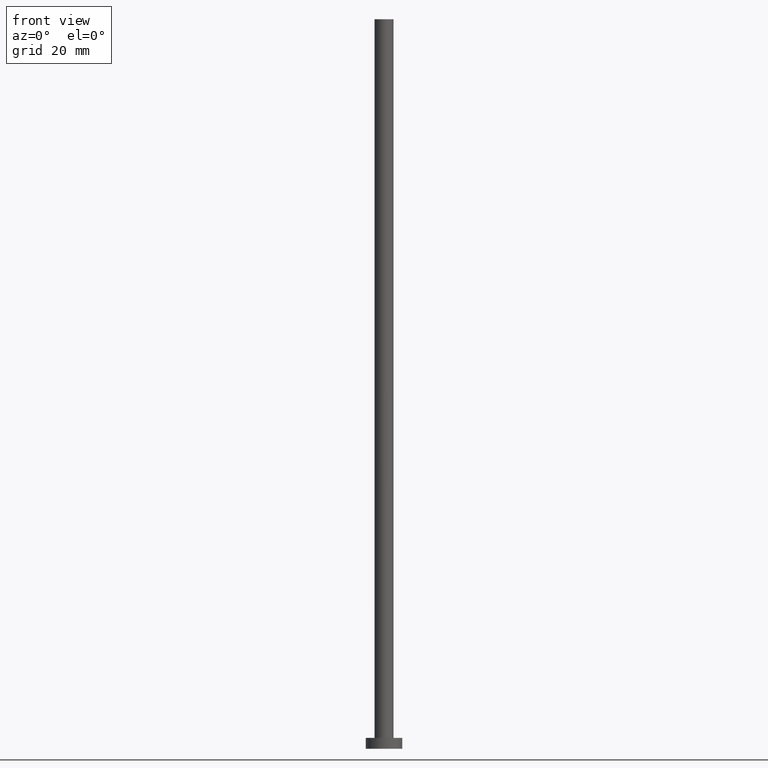
[diagram: clean part render]
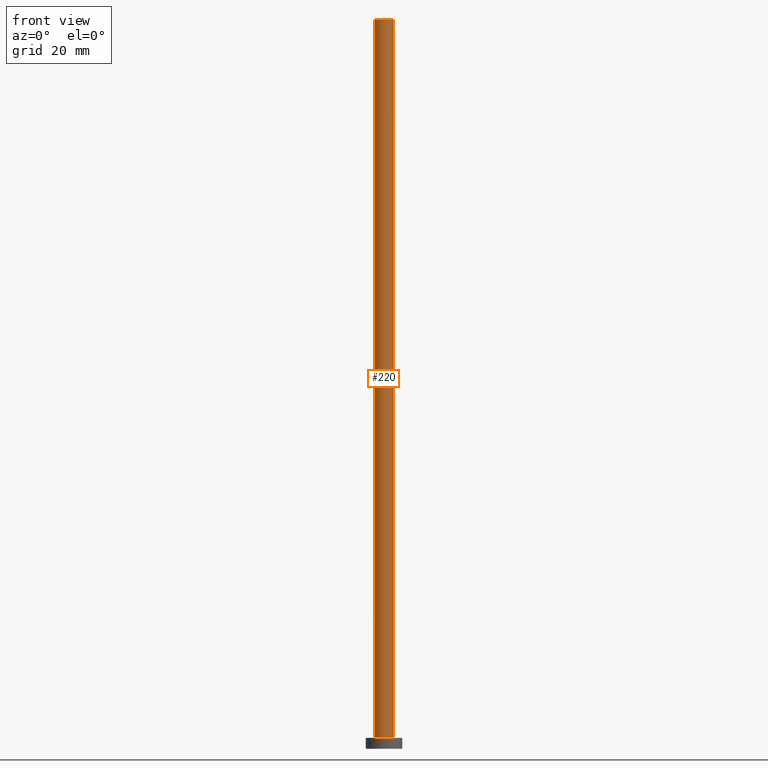
[diagram: same view with one face highlighted and labeled with its STEP entity id]
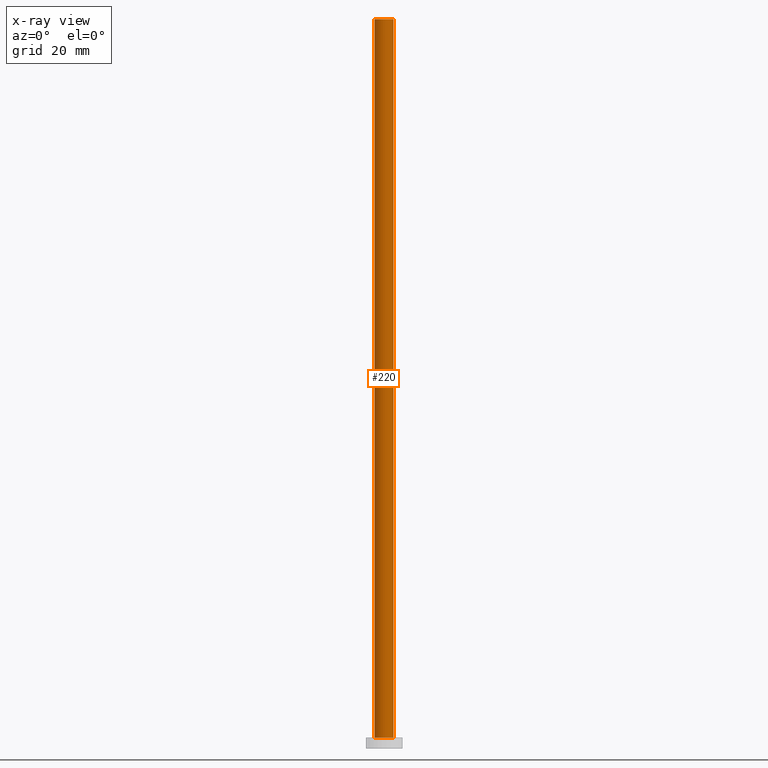
[diagram: x-ray of the same camera — body ghosted, the highlighted face saturated]
A machine part, front view. The second image highlights one B-rep face of the part: STEP entity #220.
The next image is the same camera in x-ray: the body ghosted, the highlighted face saturated — about 0% of this face is hidden behind the body in this view.
In plain terms, the highlighted cylindrical surface (edge-blend (fillet) strip) has radius 2.6 mm, axis along (-0, -0, -1).
Its self-contained STEP definition (entity closure, byte-faithful):
#2 = EDGE_CURVE ( 'NONE', #66, #246, #89, .T. ) ;
#4 = FACE_OUTER_BOUND ( 'NONE', #14, .T. ) ;
#6 = DIRECTION ( 'NONE',  ( 0.000000000000000000, 0.000000000000000000, 1.000000000000000000 ) ) ;
#14 = EDGE_LOOP ( 'NONE', ( #118, #123, #47, #248 ) ) ;
#23 = DIRECTION ( 'NONE',  ( 0.000000000000000000, 0.000000000000000000, 1.000000000000000000 ) ) ;
#47 = ORIENTED_EDGE ( 'NONE', *, *, #2, .T. ) ;
#48 = EDGE_CURVE ( 'NONE', #49, #141, #251, .T. ) ;
#49 = VERTEX_POINT ( 'NONE', #193 ) ;
#59 = DIRECTION ( 'NONE',  ( 1.000000000000000000, 0.000000000000000000, 0.000000000000000000 ) ) ;
#62 = AXIS2_PLACEMENT_3D ( 'NONE', #190, #23, #59 ) ;
#66 = VERTEX_POINT ( 'NONE', #112 ) ;
#89 = LINE ( 'NONE', #90, #119 ) ;
#90 = CARTESIAN_POINT ( 'NONE',  ( -2.600000000000000089, 0.000000000000000000, 200.0000000000000000 ) ) ;
#91 = AXIS2_PLACEMENT_3D ( 'NONE', #147, #201, #228 ) ;
#109 = EDGE_CURVE ( 'NONE', #66, #49, #206, .T. ) ;
#110 = DIRECTION ( 'NONE',  ( -0.000000000000000000, -0.000000000000000000, -1.000000000000000000 ) ) ;
#111 = CARTESIAN_POINT ( 'NONE',  ( 2.600000000000000089, 3.184081677783118191E-16, 200.0000000000000000 ) ) ;
#112 = CARTESIAN_POINT ( 'NONE',  ( -2.600000000000000089, 0.000000000000000000, 200.0000000000000000 ) ) ;
#118 = ORIENTED_EDGE ( 'NONE', *, *, #48, .F. ) ;
#119 = VECTOR ( 'NONE', #110, 1000.000000000000000 ) ;
#120 = CARTESIAN_POINT ( 'NONE',  ( -2.600000000000000089, 0.000000000000000000, 3.000000000000000000 ) ) ;
#123 = ORIENTED_EDGE ( 'NONE', *, *, #109, .F. ) ;
#141 = VERTEX_POINT ( 'NONE', #237 ) ;
#142 = CARTESIAN_POINT ( 'NONE',  ( 0.000000000000000000, 0.000000000000000000, 3.000000000000000000 ) ) ;
#147 = CARTESIAN_POINT ( 'NONE',  ( 0.000000000000000000, 0.000000000000000000, 200.0000000000000000 ) ) ;
#172 = AXIS2_PLACEMENT_3D ( 'NONE', #142, #6, #195 ) ;
#190 = CARTESIAN_POINT ( 'NONE',  ( 0.000000000000000000, 0.000000000000000000, 200.0000000000000000 ) ) ;
#193 = CARTESIAN_POINT ( 'NONE',  ( 2.600000000000000089, 3.184081677783118191E-16, 200.0000000000000000 ) ) ;
#195 = DIRECTION ( 'NONE',  ( 1.000000000000000000, 0.000000000000000000, 0.000000000000000000 ) ) ;
#201 = DIRECTION ( 'NONE',  ( -0.000000000000000000, -0.000000000000000000, -1.000000000000000000 ) ) ;
#206 = CIRCLE ( 'NONE', #62, 2.600000000000000089 ) ;
#210 = VECTOR ( 'NONE', #213, 1000.000000000000000 ) ;
#213 = DIRECTION ( 'NONE',  ( -0.000000000000000000, -0.000000000000000000, -1.000000000000000000 ) ) ;
#220 = ADVANCED_FACE ( 'NONE', ( #4 ), #244, .T. ) ;
#226 = EDGE_CURVE ( 'NONE', #246, #141, #240, .T. ) ;
#228 = DIRECTION ( 'NONE',  ( -1.000000000000000000, 0.000000000000000000, 0.000000000000000000 ) ) ;
#237 = CARTESIAN_POINT ( 'NONE',  ( 2.600000000000000089, 3.184081677783118191E-16, 3.000000000000000000 ) ) ;
#240 = CIRCLE ( 'NONE', #172, 2.600000000000000089 ) ;
#244 = CYLINDRICAL_SURFACE ( 'NONE', #91, 2.600000000000000089 ) ;
#246 = VERTEX_POINT ( 'NONE', #120 ) ;
#248 = ORIENTED_EDGE ( 'NONE', *, *, #226, .T. ) ;
#251 = LINE ( 'NONE', #111, #210 ) ;